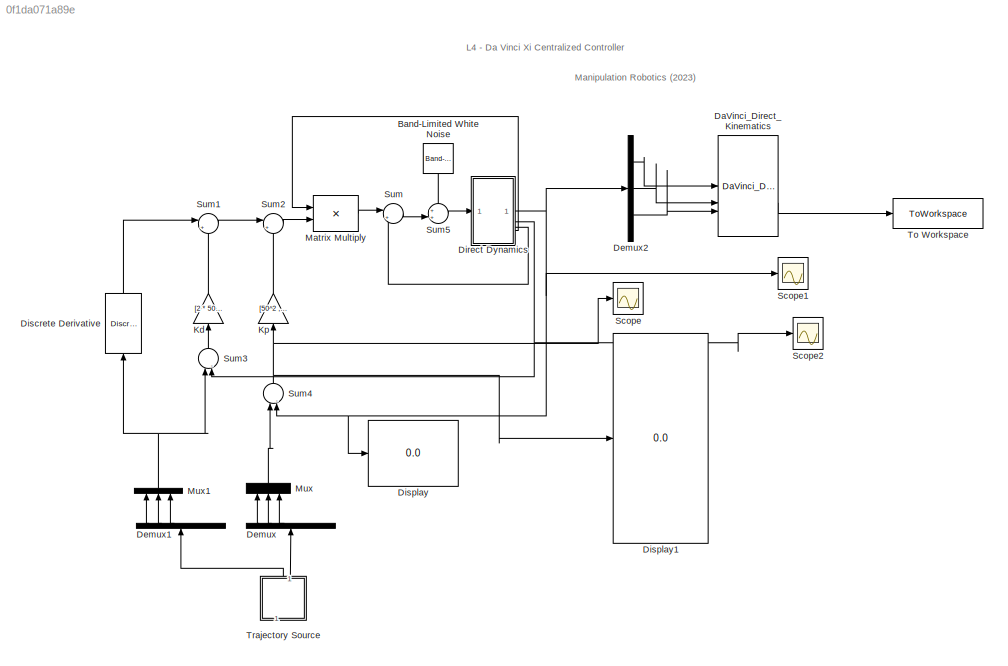
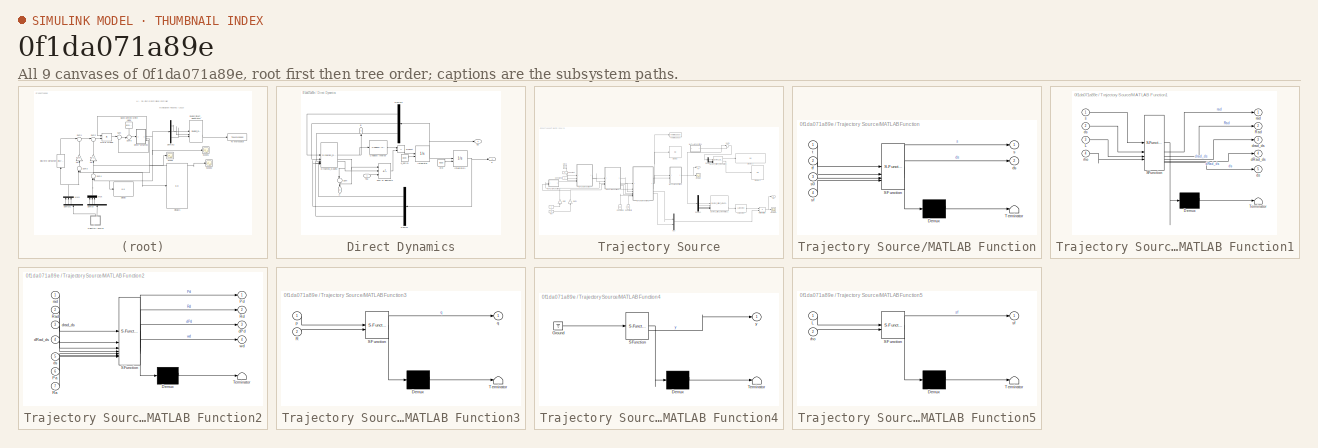
[diagram: thumbnail index - all 9 canvases of the model, root first then tree order]
MODEL slx_0f1da071a89e
KIND model
CONFIG AbsTol = auto
CONFIG EnableMultiTasking = off
CONFIG FixedStep = auto
CONFIG MaxStep = auto
CONFIG MinStep = auto
CONFIG RelTol = auto
CONFIG SampleTimeConstraint = Unconstrained
CONFIG SolverName = VariableStepAuto
CONFIG StartTime = 0.0
CONFIG StopTime = 10
BLOCK [Reference] Band-Limited White Noise  REF=simulink/Sources/Band-Limited
White Noise
  NameLocation = left
  SourceBlock = simulink/Sources/Band-Limited\nWhite Noise
  SourceType = Band-Limited White Noise.
BLOCK [Reference] DaVinci_Direct_Kinematics  REF=DaVinci_Lib/DaVinci_Direct_Kinematics
  LibrarySourceBlock = simulink/User-Defined\nFunctions/MATLAB Function
  SourceBlock = DaVinci_Lib/DaVinci_Direct_Kinematics
  SourceType = SubSystem
BLOCK [Demux] Demux
  NameLocation = right
  Outputs = 6
BLOCK [Demux] Demux1
  NameLocation = right
  Outputs = 6
BLOCK [Demux] Demux2
  Outputs = 3
BLOCK [SubSystem] Direct Dynamics
BLOCK [Outport] Direct Dynamics/B
  NameLocation = right
  Port = 4
BLOCK [Reference] Direct Dynamics/Cholesky Inverse  REF=dspinverses/Cholesky Inverse
  SourceBlock = dspinverses/Cholesky Inverse
  SourceType = Cholesky Inverse
BLOCK [Demux] Direct Dynamics/Demux
  NameLocation = top
  Outputs = 3
BLOCK [Demux] Direct Dynamics/Demux1
  NameLocation = top
  Outputs = 3
BLOCK [Reference] Direct Dynamics/Dynamics_DaVinci  REF=DaVinci_LibDynamical/Dynamics_DaVinci
  LibrarySourceBlock = simulink/User-Defined\nFunctions/MATLAB Function
  SourceBlock = DaVinci_LibDynamical/Dynamics_DaVinci
  SourceType = SubSystem
BLOCK [Integrator] Direct Dynamics/Integrator
  InitialConditionSource = external
BLOCK [Integrator] Direct Dynamics/Integrator1
  InitialConditionSource = external
BLOCK [Product] Direct Dynamics/Product
  Multiplication = Matrix(*)
BLOCK [Sum] Direct Dynamics/Sum
  Inputs = |++
  NameLocation = left
BLOCK [Sum] Direct Dynamics/Sum of Elements
  IconShape = rectangular
  Inputs = --+
BLOCK [Inport] Direct Dynamics/Tau
BLOCK [Outport] Direct Dynamics/dq
  Port = 2
BLOCK [Outport] Direct Dynamics/n
  NameLocation = left
  Port = 3
BLOCK [Outport] Direct Dynamics/q
BLOCK [Constant] Direct Dynamics/q(0)
  Value = [0, 0, 0].'
BLOCK [Constant] Direct Dynamics/q_dot(0)
  Value = [0 0 0].'
BLOCK [Reference] Discrete Derivative  REF=simulink/Discrete/Discrete Derivative
  NameLocation = right
  SourceBlock = simulink/Discrete/Discrete Derivative
  SourceType = Discrete Derivative
BLOCK [Display] Display
  Decimation = 1
BLOCK [Display] Display1
  Decimation = 1
BLOCK [Gain] Kd
  Gain = [2 * 50* 1, 0 , 0 ; 0 , 2 * 50 * 1 , 0 ; 0 , 0 , 2 * 50 * 1]
  Multiplication = Matrix(K*u)
  NameLocation = right
BLOCK [Gain] Kp
  Gain = [50^2 , 0 , 0 ; 0 , 50^2 , 0 ; 0 , 0 ,50^2]
  Multiplication = Matrix(K*u)
  NameLocation = right
BLOCK [Product] Matrix Multiply
  Multiplication = Matrix(*)
BLOCK [Mux] Mux
  DisplayOption = bar
  Inputs = 3
  NameLocation = right
BLOCK [Mux] Mux1
  DisplayOption = bar
  Inputs = 3
  NameLocation = right
BLOCK [Scope] Scope
  Floating = off
  NumInputPorts = 1
  ScopeSpecificationString = Simulink.scopes.TimeScopeBlockCfg('CurrentConfiguration', extmgr.ConfigurationSet(extmgr.Configuration('Core','General UI',true),extmgr.Configuration('Core','Source UI',true),extmgr.Configuration('Sources','WiredSimulink',true,'DataLoggingVariableName','ScopeData1'),extmgr.Configuration('Visuals','Time Domain',true,'SerializedDisplays',{struct('MinYLimReal','-325716347649.42975','MaxYLimReal','185...<+1612ch>
BLOCK [Scope] Scope1
  Floating = off
  NumInputPorts = 1
  ScopeSpecificationString = Simulink.scopes.TimeScopeBlockCfg('CurrentConfiguration', extmgr.ConfigurationSet(extmgr.Configuration('Core','General UI',true),extmgr.Configuration('Core','Source UI',true),extmgr.Configuration('Sources','WiredSimulink',true,'DataLoggingVariableName','ScopeData1'),extmgr.Configuration('Visuals','Time Domain',true,'SerializedDisplays',{struct('MinYLimReal','-0.00628','MaxYLimReal','0.00791','YLab...<+1451ch>
BLOCK [Scope] Scope2
  Floating = off
  NumInputPorts = 1
  ScopeSpecificationString = Simulink.scopes.TimeScopeBlockCfg('CurrentConfiguration', extmgr.ConfigurationSet(extmgr.Configuration('Core','General UI',true),extmgr.Configuration('Core','Source UI',true),extmgr.Configuration('Sources','WiredSimulink',true,'DataLoggingVariableName','ScopeData2'),extmgr.Configuration('Visuals','Time Domain',true,'SerializedDisplays',{struct('MinYLimReal','-0.18196','MaxYLimReal','0.2014','YLabe...<+1416ch>
BLOCK [Sum] Sum
  Inputs = |++
BLOCK [Sum] Sum1
  Inputs = |+-
BLOCK [Sum] Sum2
  Inputs = |+-
BLOCK [Sum] Sum3
  Inputs = |-+
  NameLocation = right
BLOCK [Sum] Sum4
  Inputs = |-+
  NameLocation = right
BLOCK [Sum] Sum5
  Inputs = ++|
BLOCK [ToWorkspace] To Workspace
  FixptAsFi = on
  MaxDataPoints = inf
  SampleTime = -1
  SaveFormat = Timeseries
  VariableName = simout2
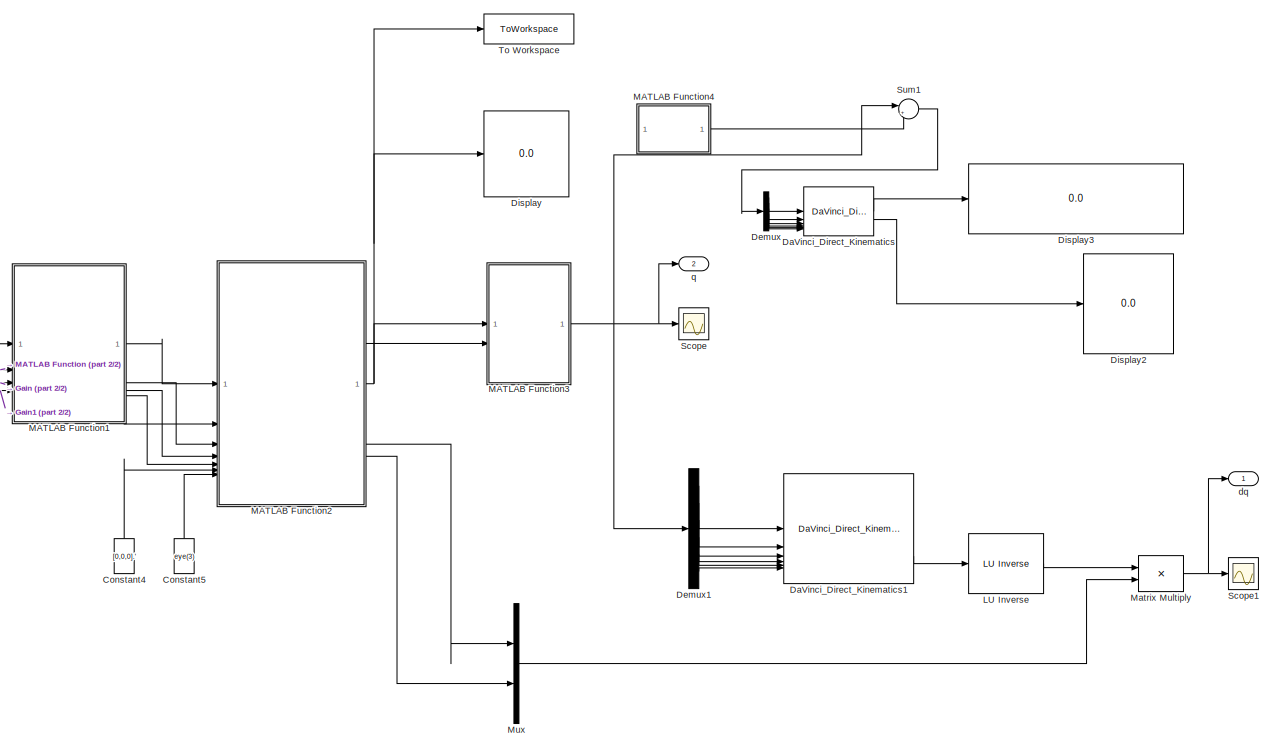
[diagram: Trajectory Source - part 1/2, most of the canvas]
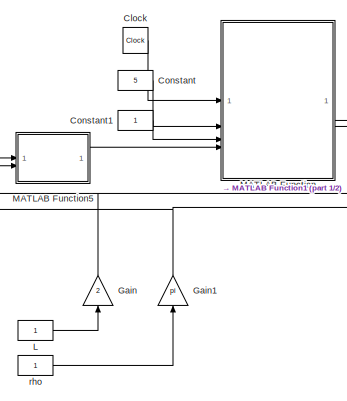
[diagram: Trajectory Source - part 2/2, middle left region]
BLOCK [SubSystem] Trajectory Source
  NameLocation = right
BLOCK [Reference] Trajectory Source/ LU Inverse  REF=dspinverses/ LU Inverse
  SourceBlock = dspinverses/ LU Inverse
  SourceType = LU Inverse
BLOCK [Clock] Trajectory Source/Clock
BLOCK [Constant] Trajectory Source/Constant
  Value = 5
BLOCK [Constant] Trajectory Source/Constant1
BLOCK [Constant] Trajectory Source/Constant4
  NameLocation = right
  Value = [0,0,0].'
BLOCK [Constant] Trajectory Source/Constant5
  NameLocation = right
  Value = eye(3)
BLOCK [Reference] Trajectory Source/DaVinci_Direct_Kinematics  REF=DaVinci_Lib/DaVinci_Direct_Kinematics
  LibrarySourceBlock = simulink/User-Defined\nFunctions/MATLAB Function
  SourceBlock = DaVinci_Lib/DaVinci_Direct_Kinematics
  SourceType = SubSystem
BLOCK [Reference] Trajectory Source/DaVinci_Direct_Kinematics1  REF=DaVinci_LibJ_Trajectory/DaVinci_Direct_Kinematics
  LibrarySourceBlock = simulink/User-Defined\nFunctions/MATLAB Function
  SourceBlock = DaVinci_LibJ_Trajectory/DaVinci_Direct_Kinematics
  SourceType = SubSystem
BLOCK [Demux] Trajectory Source/Demux
  Outputs = 6
BLOCK [Demux] Trajectory Source/Demux1
  Outputs = 6
BLOCK [Display] Trajectory Source/Display
  Decimation = 1
BLOCK [Display] Trajectory Source/Display2
  Decimation = 1
BLOCK [Display] Trajectory Source/Display3
  Decimation = 1
BLOCK [Gain] Trajectory Source/Gain
  Gain = 2
  NameLocation = right
BLOCK [Gain] Trajectory Source/Gain1
  Gain = pi
  NameLocation = right
BLOCK [Constant] Trajectory Source/L
BLOCK [SubSystem] Trajectory Source/MATLAB Function
  ErrorFcn = Stateflow.Translate.translate
  LibrarySourceBlock = simulink/User-Defined\nFunctions/MATLAB Function
  PermitHierarchicalResolution = ExplicitOnly
  SFBlockType = MATLAB Function
  TreatAsAtomicUnit = on
BLOCK [Demux] Trajectory Source/MATLAB Function/ Demux 
  Outputs = 1
BLOCK [S-Function] Trajectory Source/MATLAB Function/ SFunction 
  EnableBusSupport = on
  FunctionName = sf_sfun
  PortCounts = [4 3]
  SFcnIsStateOwnerBlock = off
  SFunctionDeploymentMode = off
  Tag = Stateflow S-Function 2
BLOCK [Terminator] Trajectory Source/MATLAB Function/ Terminator 
BLOCK [Outport] Trajectory Source/MATLAB Function/ds
  Port = 2
BLOCK [Outport] Trajectory Source/MATLAB Function/s
BLOCK [Inport] Trajectory Source/MATLAB Function/s0
  Port = 3
BLOCK [Inport] Trajectory Source/MATLAB Function/sf
  Port = 4
BLOCK [Inport] Trajectory Source/MATLAB Function/t
BLOCK [Inport] Trajectory Source/MATLAB Function/tf
  Port = 2
BLOCK [SubSystem] Trajectory Source/MATLAB Function1
  ErrorFcn = Stateflow.Translate.translate
  LibrarySourceBlock = simulink/User-Defined\nFunctions/MATLAB Function
  PermitHierarchicalResolution = ExplicitOnly
  SFBlockType = MATLAB Function
  TreatAsAtomicUnit = on
BLOCK [Demux] Trajectory Source/MATLAB Function1/ Demux 
  Outputs = 1
BLOCK [S-Function] Trajectory Source/MATLAB Function1/ SFunction 
  EnableBusSupport = on
  FunctionName = sf_sfun
  PortCounts = [4 6]
  SFcnIsStateOwnerBlock = off
  SFunctionDeploymentMode = off
  Tag = Stateflow S-Function 1
BLOCK [Terminator] Trajectory Source/MATLAB Function1/ Terminator 
BLOCK [Inport] Trajectory Source/MATLAB Function1/L
  Port = 3
BLOCK [Outport] Trajectory Source/MATLAB Function1/Rad
  Port = 2
BLOCK [Outport] Trajectory Source/MATLAB Function1/dRad_ds
  Port = 4
BLOCK [Outport] Trajectory Source/MATLAB Function1/drad_ds
  Port = 3
BLOCK [Outport] Trajectory Source/MATLAB Function1/ds
  Port = 5
BLOCK [Inport] Trajectory Source/MATLAB Function1/ds 
  Port = 2
BLOCK [Outport] Trajectory Source/MATLAB Function1/rad
BLOCK [Inport] Trajectory Source/MATLAB Function1/rho
  Port = 4
BLOCK [Inport] Trajectory Source/MATLAB Function1/s
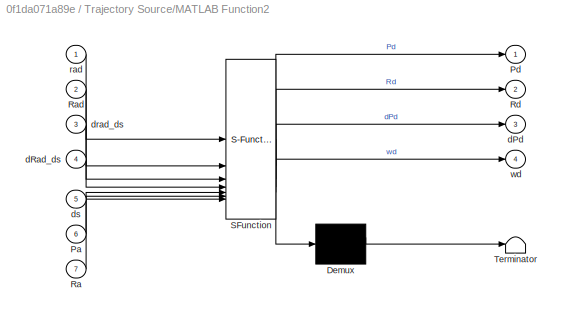
BLOCK [SubSystem] Trajectory Source/MATLAB Function2
  ErrorFcn = Stateflow.Translate.translate
  LibrarySourceBlock = simulink/User-Defined\nFunctions/MATLAB Function
  PermitHierarchicalResolution = ExplicitOnly
  SFBlockType = MATLAB Function
  TreatAsAtomicUnit = on
BLOCK [Demux] Trajectory Source/MATLAB Function2/ Demux 
  Outputs = 1
BLOCK [S-Function] Trajectory Source/MATLAB Function2/ SFunction 
  EnableBusSupport = on
  FunctionName = sf_sfun
  PortCounts = [7 5]
  SFcnIsStateOwnerBlock = off
  SFunctionDeploymentMode = off
  Tag = Stateflow S-Function 3
BLOCK [Terminator] Trajectory Source/MATLAB Function2/ Terminator 
BLOCK [Inport] Trajectory Source/MATLAB Function2/Pa
  Port = 6
BLOCK [Outport] Trajectory Source/MATLAB Function2/Pd
BLOCK [Inport] Trajectory Source/MATLAB Function2/Ra
  Port = 7
BLOCK [Inport] Trajectory Source/MATLAB Function2/Rad
  Port = 2
BLOCK [Outport] Trajectory Source/MATLAB Function2/Rd
  Port = 2
BLOCK [Outport] Trajectory Source/MATLAB Function2/dPd
  Port = 3
BLOCK [Inport] Trajectory Source/MATLAB Function2/dRad_ds
  Port = 4
BLOCK [Inport] Trajectory Source/MATLAB Function2/drad_ds
  Port = 3
BLOCK [Inport] Trajectory Source/MATLAB Function2/ds
  Port = 5
BLOCK [Inport] Trajectory Source/MATLAB Function2/rad
BLOCK [Outport] Trajectory Source/MATLAB Function2/wd
  Port = 4
BLOCK [SubSystem] Trajectory Source/MATLAB Function3
  ErrorFcn = Stateflow.Translate.translate
  LibrarySourceBlock = simulink/User-Defined\nFunctions/MATLAB Function
  PermitHierarchicalResolution = ExplicitOnly
  SFBlockType = MATLAB Function
  TreatAsAtomicUnit = on
BLOCK [Demux] Trajectory Source/MATLAB Function3/ Demux 
  Outputs = 1
BLOCK [S-Function] Trajectory Source/MATLAB Function3/ SFunction 
  EnableBusSupport = on
  FunctionName = sf_sfun
  PortCounts = [2 2]
  SFcnIsStateOwnerBlock = off
  SFunctionDeploymentMode = off
  Tag = Stateflow S-Function 4
BLOCK [Terminator] Trajectory Source/MATLAB Function3/ Terminator 
BLOCK [Inport] Trajectory Source/MATLAB Function3/R
  Port = 2
BLOCK [Inport] Trajectory Source/MATLAB Function3/p
BLOCK [Outport] Trajectory Source/MATLAB Function3/q
BLOCK [SubSystem] Trajectory Source/MATLAB Function4
  ErrorFcn = Stateflow.Translate.translate
  PermitHierarchicalResolution = ExplicitOnly
  SFBlockType = MATLAB Function
  TreatAsAtomicUnit = on
BLOCK [Demux] Trajectory Source/MATLAB Function4/ Demux 
  Outputs = 1
BLOCK [Ground] Trajectory Source/MATLAB Function4/ Ground 
BLOCK [S-Function] Trajectory Source/MATLAB Function4/ SFunction 
  EnableBusSupport = on
  FunctionName = sf_sfun
  PortCounts = [1 2]
  SFcnIsStateOwnerBlock = off
  SFunctionDeploymentMode = off
  Tag = Stateflow S-Function 5
BLOCK [Terminator] Trajectory Source/MATLAB Function4/ Terminator 
BLOCK [Outport] Trajectory Source/MATLAB Function4/y
BLOCK [SubSystem] Trajectory Source/MATLAB Function5
  ErrorFcn = Stateflow.Translate.translate
  LibrarySourceBlock = simulink/User-Defined\nFunctions/MATLAB Function
  PermitHierarchicalResolution = ExplicitOnly
  SFBlockType = MATLAB Function
  TreatAsAtomicUnit = on
BLOCK [Demux] Trajectory Source/MATLAB Function5/ Demux 
  Outputs = 1
BLOCK [S-Function] Trajectory Source/MATLAB Function5/ SFunction 
  EnableBusSupport = on
  FunctionName = sf_sfun
  PortCounts = [2 2]
  SFcnIsStateOwnerBlock = off
  SFunctionDeploymentMode = off
  Tag = Stateflow S-Function 6
BLOCK [Terminator] Trajectory Source/MATLAB Function5/ Terminator 
BLOCK [Inport] Trajectory Source/MATLAB Function5/L
BLOCK [Inport] Trajectory Source/MATLAB Function5/rho
  Port = 2
BLOCK [Outport] Trajectory Source/MATLAB Function5/sf
BLOCK [Product] Trajectory Source/Matrix Multiply
  Multiplication = Matrix(*)
BLOCK [Mux] Trajectory Source/Mux
  DisplayOption = bar
  Inputs = 2
BLOCK [Scope] Trajectory Source/Scope
  Floating = off
  NumInputPorts = 1
  ScopeSpecificationString = Simulink.scopes.TimeScopeBlockCfg('CurrentConfiguration', extmgr.ConfigurationSet(extmgr.Configuration('Core','General UI',true),extmgr.Configuration('Core','Source UI',true),extmgr.Configuration('Sources','WiredSimulink',true),extmgr.Configuration('Visuals','Time Domain',true,'SerializedDisplays',{struct('MinYLimReal','-4.72887','MaxYLimReal','11.14394','YLabelReal','','MinYLimMag','0.00000','Max...<+1618ch>
BLOCK [Scope] Trajectory Source/Scope1
  Floating = off
  NumInputPorts = 1
  ScopeSpecificationString = Simulink.scopes.TimeScopeBlockCfg('CurrentConfiguration', extmgr.ConfigurationSet(extmgr.Configuration('Core','General UI',true),extmgr.Configuration('Core','Source UI',true),extmgr.Configuration('Sources','WiredSimulink',true,'DataLoggingVariableName','ScopeData1'),extmgr.Configuration('Visuals','Time Domain',true,'SerializedDisplays',{struct('MinYLimReal','-1526.10089','MaxYLimReal','446.44944',...<+1634ch>
BLOCK [Sum] Trajectory Source/Sum1
  Inputs = |+-
BLOCK [ToWorkspace] Trajectory Source/To Workspace
  FixptAsFi = on
  MaxDataPoints = inf
  SampleTime = -1
  SaveFormat = Timeseries
  VariableName = simout
BLOCK [Outport] Trajectory Source/dq
BLOCK [Outport] Trajectory Source/q
  Port = 2
BLOCK [Constant] Trajectory Source/rho
ANNOTATION (root): L4 - Da Vinci Xi Centralized Controller
ANNOTATION (root): Manipulation Robotics (2023)
LINE Band-Limited White Noise:1 -> Sum5:1
LINE DaVinci_Direct_Kinematics:2 -> To Workspace:1
LINE Demux1:1 -> Mux1:1
LINE Demux1:2 -> Mux1:2
LINE Demux1:3 -> Mux1:3
LINE Demux2:1 -> DaVinci_Direct_Kinematics:1
LINE Demux2:2 -> DaVinci_Direct_Kinematics:2
LINE Demux2:3 -> DaVinci_Direct_Kinematics:3
LINE Demux:1 -> Mux:1
LINE Demux:2 -> Mux:2
LINE Demux:3 -> Mux:3
LINE Direct Dynamics/Cholesky Inverse:1 -> Direct Dynamics/Product:1
LINE Direct Dynamics/Demux1:1 -> Direct Dynamics/Dynamics_DaVinci:1
LINE Direct Dynamics/Demux1:2 -> Direct Dynamics/Dynamics_DaVinci:2
LINE Direct Dynamics/Demux1:3 -> Direct Dynamics/Dynamics_DaVinci:3
LINE Direct Dynamics/Demux:1 -> Direct Dynamics/Dynamics_DaVinci:4
LINE Direct Dynamics/Demux:2 -> Direct Dynamics/Dynamics_DaVinci:5
LINE Direct Dynamics/Demux:3 -> Direct Dynamics/Dynamics_DaVinci:6
NET Direct Dynamics/Dynamics_DaVinci:1 -> Direct Dynamics/B:1, Direct Dynamics/Cholesky Inverse:1
NET Direct Dynamics/Dynamics_DaVinci:2 -> Direct Dynamics/Sum of Elements:1, Direct Dynamics/Sum:2
NET Direct Dynamics/Dynamics_DaVinci:3 -> Direct Dynamics/Sum of Elements:2, Direct Dynamics/Sum:1
NET Direct Dynamics/Integrator1:1 -> Direct Dynamics/Demux:1, Direct Dynamics/q:1
NET Direct Dynamics/Integrator:1 -> Direct Dynamics/Demux1:1, Direct Dynamics/Integrator1:1, Direct Dynamics/dq:1
LINE Direct Dynamics/Product:1 -> Direct Dynamics/Integrator:1
LINE Direct Dynamics/Sum of Elements:1 -> Direct Dynamics/Product:2
LINE Direct Dynamics/Sum:1 -> Direct Dynamics/n:1
LINE Direct Dynamics/Tau:1 -> Direct Dynamics/Sum of Elements:3
LINE Direct Dynamics/q(0):1 -> Direct Dynamics/Integrator1:2
LINE Direct Dynamics/q_dot(0):1 -> Direct Dynamics/Integrator:2
NET Direct Dynamics:1 -> Demux2:1, Display:1, Scope1:1, Sum4:2
NET Direct Dynamics:2 -> Scope2:1, Sum3:2
LINE Direct Dynamics:3 -> Sum:2
LINE Direct Dynamics:4 -> Matrix Multiply:1
LINE Discrete Derivative:1 -> Sum1:1
LINE Kd:1 -> Sum1:2
LINE Kp:1 -> Sum2:2
LINE Matrix Multiply:1 -> Sum:1
NET Mux1:1 -> Discrete Derivative:1, Sum3:1
LINE Mux:1 -> Sum4:1
LINE Sum1:1 -> Sum2:1
LINE Sum2:1 -> Matrix Multiply:2
LINE Sum3:1 -> Kd:1
NET Sum4:1 -> Display1:1, Kp:1, Scope:1
LINE Sum5:1 -> Direct Dynamics:1
LINE Sum:1 -> Sum5:2
LINE Trajectory Source/ LU Inverse:1 -> Trajectory Source/Matrix Multiply:1
LINE Trajectory Source/Clock:1 -> Trajectory Source/MATLAB Function:1
LINE Trajectory Source/Constant1:1 -> Trajectory Source/MATLAB Function:3
LINE Trajectory Source/Constant4:1 -> Trajectory Source/MATLAB Function2:6
LINE Trajectory Source/Constant5:1 -> Trajectory Source/MATLAB Function2:7
LINE Trajectory Source/Constant:1 -> Trajectory Source/MATLAB Function:2
LINE Trajectory Source/DaVinci_Direct_Kinematics1:3 -> Trajectory Source/ LU Inverse:1
LINE Trajectory Source/DaVinci_Direct_Kinematics:1 -> Trajectory Source/Display3:1
LINE Trajectory Source/DaVinci_Direct_Kinematics:2 -> Trajectory Source/Display2:1
LINE Trajectory Source/Demux1:1 -> Trajectory Source/DaVinci_Direct_Kinematics1:1
LINE Trajectory Source/Demux1:2 -> Trajectory Source/DaVinci_Direct_Kinematics1:2
LINE Trajectory Source/Demux1:3 -> Trajectory Source/DaVinci_Direct_Kinematics1:3
LINE Trajectory Source/Demux1:4 -> Trajectory Source/DaVinci_Direct_Kinematics1:4
LINE Trajectory Source/Demux1:5 -> Trajectory Source/DaVinci_Direct_Kinematics1:5
LINE Trajectory Source/Demux1:6 -> Trajectory Source/DaVinci_Direct_Kinematics1:6
LINE Trajectory Source/Demux:1 -> Trajectory Source/DaVinci_Direct_Kinematics:1
LINE Trajectory Source/Demux:2 -> Trajectory Source/DaVinci_Direct_Kinematics:2
LINE Trajectory Source/Demux:3 -> Trajectory Source/DaVinci_Direct_Kinematics:3
LINE Trajectory Source/Demux:4 -> Trajectory Source/DaVinci_Direct_Kinematics:4
LINE Trajectory Source/Demux:5 -> Trajectory Source/DaVinci_Direct_Kinematics:5
LINE Trajectory Source/Demux:6 -> Trajectory Source/DaVinci_Direct_Kinematics:6
NET Trajectory Source/Gain1:1 -> Trajectory Source/MATLAB Function1:4, Trajectory Source/MATLAB Function5:2
NET Trajectory Source/Gain:1 -> Trajectory Source/MATLAB Function1:3, Trajectory Source/MATLAB Function5:1
LINE Trajectory Source/L:1 -> Trajectory Source/Gain:1
LINE Trajectory Source/MATLAB Function1:1 -> Trajectory Source/MATLAB Function2:1
LINE Trajectory Source/MATLAB Function1:2 -> Trajectory Source/MATLAB Function2:2
LINE Trajectory Source/MATLAB Function1:3 -> Trajectory Source/MATLAB Function2:3
LINE Trajectory Source/MATLAB Function1:4 -> Trajectory Source/MATLAB Function2:4
LINE Trajectory Source/MATLAB Function1:5 -> Trajectory Source/MATLAB Function2:5
NET Trajectory Source/MATLAB Function2:1 -> Trajectory Source/Display:1, Trajectory Source/MATLAB Function3:1, Trajectory Source/To Workspace:1
LINE Trajectory Source/MATLAB Function2:2 -> Trajectory Source/MATLAB Function3:2
LINE Trajectory Source/MATLAB Function2:3 -> Trajectory Source/Mux:1
LINE Trajectory Source/MATLAB Function2:4 -> Trajectory Source/Mux:2
NET Trajectory Source/MATLAB Function3:1 -> Trajectory Source/Demux1:1, Trajectory Source/Scope:1, Trajectory Source/Sum1:1, Trajectory Source/q:1
LINE Trajectory Source/MATLAB Function4:1 -> Trajectory Source/Sum1:2
LINE Trajectory Source/MATLAB Function5:1 -> Trajectory Source/MATLAB Function:4
LINE Trajectory Source/MATLAB Function:1 -> Trajectory Source/MATLAB Function1:1
LINE Trajectory Source/MATLAB Function:2 -> Trajectory Source/MATLAB Function1:2
NET Trajectory Source/Matrix Multiply:1 -> Trajectory Source/Scope1:1, Trajectory Source/dq:1
LINE Trajectory Source/Mux:1 -> Trajectory Source/Matrix Multiply:2
LINE Trajectory Source/Sum1:1 -> Trajectory Source/Demux:1
LINE Trajectory Source/rho:1 -> Trajectory Source/Gain1:1
LINE Trajectory Source:1 -> Demux1:1
LINE Trajectory Source:2 -> Demux:1
note: NET lines group one-source signal fan-out (src -> all destinations, sorted); 1:1 wires keep LINE
CHART Trajectory Source/MATLAB Function1 states=1 transitions=1
  STATE_LABEL 'eML_blk_kernel()'
  STATE_LABEL "SCRIPT:\nfunction [rad,Rad,drad_ds,dRad_ds, ds] = trajectory_velocity(s, ds, L, rho)\n\nrad = zeros(3,1);\nRad = zeros(3,3);\ndrad_ds = zeros(3,1);\ndRad_ds = zeros(3,3);\n\nsquare = sqrt(L^2+4*rho^2);\none = L;\ntwo = L+rho*pi;\nthree = L+rho*pi+square;\nfour = L+2*rho*pi+sqrt(L^2+4*rho^2);\nfive = L+2*rho*pi+2*square;\nsix = L+3*rho*pi+2*square;\n\n\nif 0<=s && s<one\n\n    rad=[0 s rho].';\n    Rad=eye(3);\n    dra...<+1866ch>"
CHART Trajectory Source/MATLAB Function states=1 transitions=1
  STATE_LABEL 'eML_blk_kernel()'
  STATE_LABEL 'SCRIPT:\nfunction [s,ds] = length_speed(t, tf, s0, sf)\n\n\nif 0 <= t && t <= tf\n    s=s0+3/(tf^2)*(sf-s0)*t^2-2/(tf^3)*(sf-s0)*t^3;\n    ds=6/(tf^2)*(sf-s0)*t-6/(tf^3)*(sf-s0)*t^2;\nelse \n    s=sf;\n    ds=0;\nend\n'
CHART Trajectory Source/MATLAB Function2 states=1 transitions=1
  STATE_LABEL 'eML_blk_kernel()'
  STATE_LABEL "SCRIPT:\nfunction [Pd,Rd,dPd,wd] = arbitrary_placement(rad,Rad,drad_ds,dRad_ds,ds, Pa, Ra)\n\n% %sem cross\nRd=Ra*Rad;\nPd=Pa+Ra*rad;\ndPd=Ra*drad_ds * ds;\nw=Ra*dRad_ds*Rad'*Ra';\nwd=[w(3,2);w(1,3);w(2,1)]*ds;\n\n\n% %com cross?\n% Rd=cross(Ra,Rad);\n% Pd=Pa+cross(Ra,rad);\n% dPd=cross(Ra,drad_ds);\n% w=cross(cross(dRad_ds,Rad'),Ra');\n% wd=[w(3,2);w(1,3);w(2,1)];\n\n\n"
CHART Trajectory Source/MATLAB Function3 states=1 transitions=1
  STATE_LABEL 'eML_blk_kernel()'
  STATE_LABEL "SCRIPT:\nfunction q  = daVinciIK(p,R)\n% IKin Calculations for DaVinci Robot\n% q = [qx qy qz]\n\nii = [1 ; 0 ; 0];\njj = [0 ; 1 ; 0];\nkk = [0 ; 0 ; 1];\na5 = .010;\na6 = .020;\n\nx6 = R * ii;\ny6 = R * jj;\nz6 = R * kk;\np5 = p - a6 * x6;\nz5 = z6;\n\nz4 = cross(p5, z5) / norm(cross(p5, z5));\nx5 = cross(z5, z4);\np3 = p5 - a5 * x5;\n\ntheta1 = atan2(-jj.' * p3, -ii.' * p3);\nR1 = [cos(theta1) 0 -sin(theta1) ; sin(th...<+589ch>"
CHART Trajectory Source/MATLAB Function4 states=1 transitions=1
  STATE_LABEL 'eML_blk_kernel()'
  STATE_LABEL 'SCRIPT:\nfunction y = fnc\n%#codegen\n\n\ny = [0 ; -pi/2 ; 0 ; pi/2 ; -pi/2 ; 0];\n\nend'
CHART Trajectory Source/MATLAB Function5 states=1 transitions=1
  STATE_LABEL 'eML_blk_kernel()'
  STATE_LABEL 'SCRIPT:\nfunction sf = fcn(L,rho)\n\n\nsf = L+3*rho*pi+2*sqrt(L^2+4*rho^2);\n\n'
CHART  states=0 transitions=0
CHART  states=0 transitions=0
CHART  states=0 transitions=0
CHART  states=0 transitions=0
CHART  states=0 transitions=0
CHART  states=0 transitions=0
